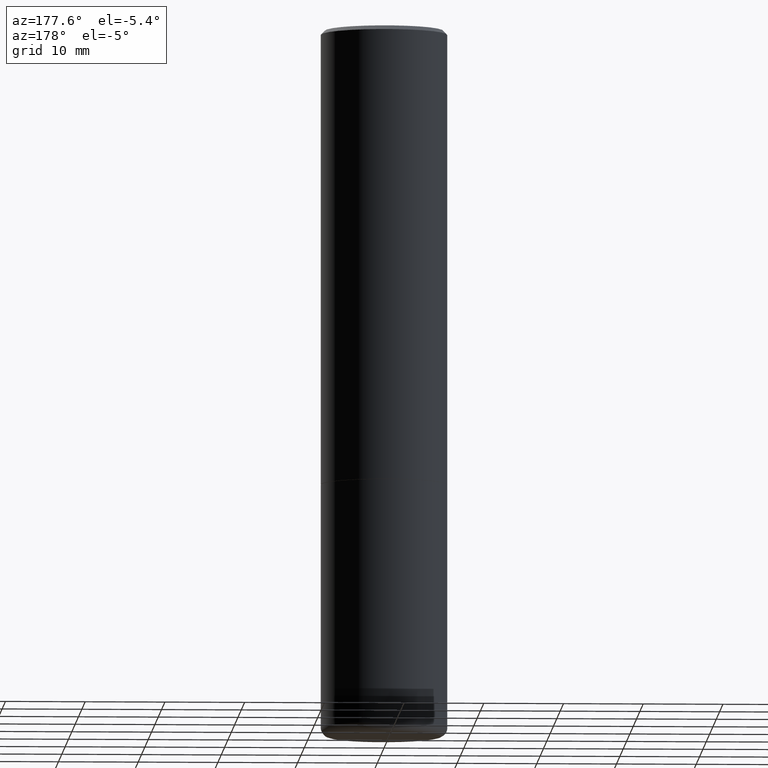
[diagram: clean part render]
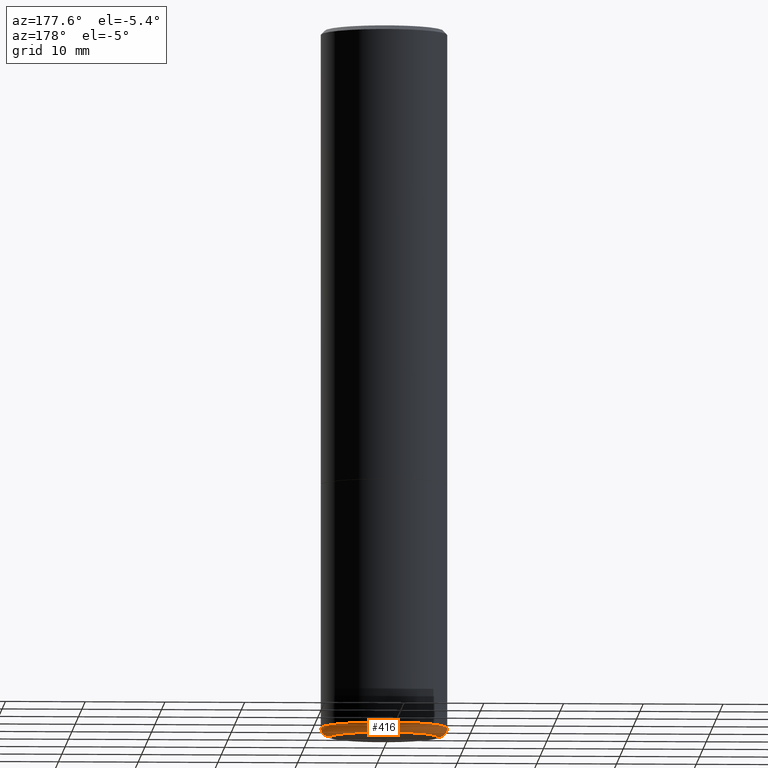
[diagram: same view with one face highlighted and labeled with its STEP entity id]
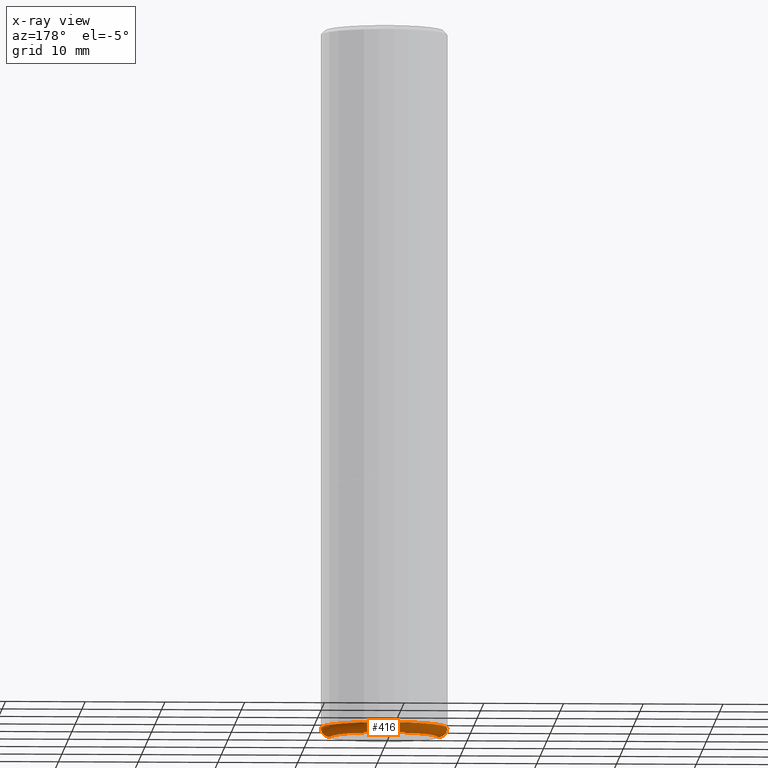
[diagram: x-ray of the same camera — body ghosted, the highlighted face saturated]
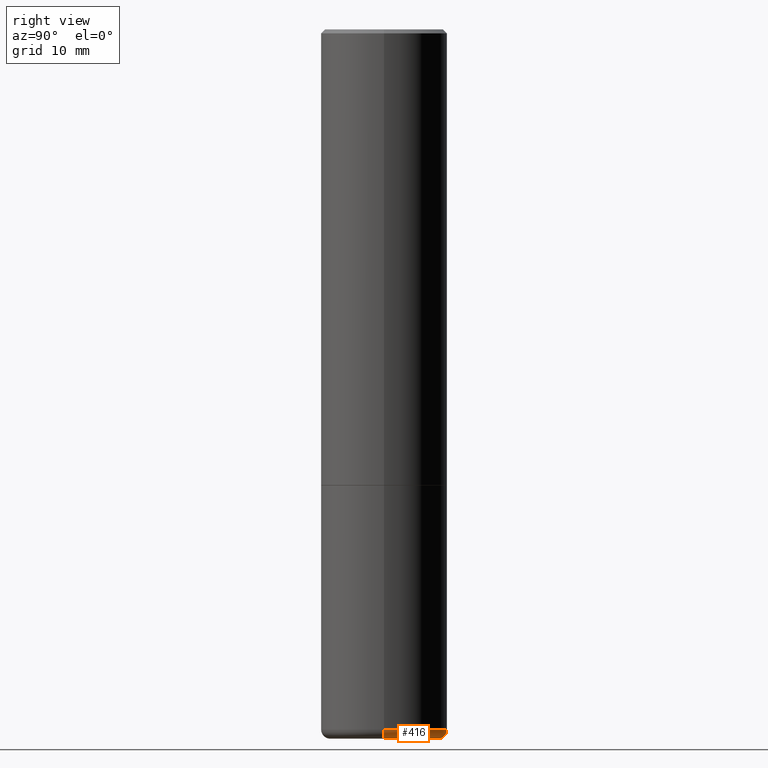
[diagram: same view with one face highlighted and labeled with its STEP entity id]
A machine part, auxiliary view. The second image highlights one B-rep face of the part: STEP entity #416.
The next image is the same camera in x-ray: the body ghosted, the highlighted face saturated — about 0% of this face is hidden behind the body in this view.
A second angle (right view) of the same face is appended — the face is thin or edge-on in the first view.
In plain terms, the highlighted toroidal blend (fillet) surface has major radius 6.7945 mm and minor (blend) radius 1.143 mm.
Its self-contained STEP definition (entity closure, byte-faithful):
#10 = CARTESIAN_POINT ( 'NONE',  ( -0.3125000000000000000, -7.739112131260931893E-15, -3.455061670936044216 ) ) ;
#15 = AXIS2_PLACEMENT_3D ( 'NONE', #248, #353, #317 ) ;
#34 = DIRECTION ( 'NONE',  ( 1.000000000000000000, -6.982962677686269077E-15, 0.000000000000000000 ) ) ;
#35 = CARTESIAN_POINT ( 'NONE',  ( 0.2651448819690678804, -1.407168150092053958E-14, -3.500000000000000000 ) ) ;
#44 = DIRECTION ( 'NONE',  ( -2.445468806185136597E-29, 3.491481338843145583E-15, 1.000000000000000000 ) ) ;
#69 = CARTESIAN_POINT ( 'NONE',  ( -0.2675000000000000155, -1.016258153046714615E-14, -3.455061670936044216 ) ) ;
#75 = EDGE_CURVE ( 'NONE', #375, #102, #87, .T. ) ;
#87 = CIRCLE ( 'NONE', #15, 0.04499999999999999833 ) ;
#88 = CIRCLE ( 'NONE', #296, 0.3125000000000000000 ) ;
#95 = AXIS2_PLACEMENT_3D ( 'NONE', #69, #352, #241 ) ;
#101 = DIRECTION ( 'NONE',  ( -2.445468806185136597E-29, 3.491481338843145583E-15, 1.000000000000000000 ) ) ;
#102 = VERTEX_POINT ( 'NONE', #148 ) ;
#110 = DIRECTION ( 'NONE',  ( -2.445468806185136597E-29, 3.491481338843145583E-15, 1.000000000000000000 ) ) ;
#133 = EDGE_CURVE ( 'NONE', #375, #253, #399, .T. ) ;
#136 = CARTESIAN_POINT ( 'NONE',  ( 8.449245539719989979E-29, -1.206328334862541465E-14, -3.455061670936044216 ) ) ;
#148 = CARTESIAN_POINT ( 'NONE',  ( 0.3125000000000000000, -1.424545918540237458E-14, -3.455061670936044216 ) ) ;
#154 = CARTESIAN_POINT ( 'NONE',  ( -0.2651448819690678804, -1.008952714362760311E-14, -3.500000000000000000 ) ) ;
#169 = ORIENTED_EDGE ( 'NONE', *, *, #133, .T. ) ;
#174 = CIRCLE ( 'NONE', #95, 0.04499999999999999833 ) ;
#194 = AXIS2_PLACEMENT_3D ( 'NONE', #214, #44, #322 ) ;
#214 = CARTESIAN_POINT ( 'NONE',  ( 8.559140821647976968E-29, -1.222018468595100934E-14, -3.500000000000000000 ) ) ;
#241 = DIRECTION ( 'NONE',  ( -1.000000000000000000, 7.105427357600990815E-15, 0.000000000000000000 ) ) ;
#247 = FACE_OUTER_BOUND ( 'NONE', #305, .T. ) ;
#248 = CARTESIAN_POINT ( 'NONE',  ( 0.2675000000000000155, -1.393122586490649131E-14, -3.455061670936044216 ) ) ;
#253 = VERTEX_POINT ( 'NONE', #154 ) ;
#280 = EDGE_CURVE ( 'NONE', #102, #442, #88, .T. ) ;
#289 = AXIS2_PLACEMENT_3D ( 'NONE', #136, #101, #413 ) ;
#296 = AXIS2_PLACEMENT_3D ( 'NONE', #342, #110, #34 ) ;
#305 = EDGE_LOOP ( 'NONE', ( #169, #422, #369, #359 ) ) ;
#317 = DIRECTION ( 'NONE',  ( 1.000000000000000000, -6.982962677686269077E-15, 0.000000000000000000 ) ) ;
#322 = DIRECTION ( 'NONE',  ( 1.000000000000000000, -6.982962677686266711E-15, 0.000000000000000000 ) ) ;
#342 = CARTESIAN_POINT ( 'NONE',  ( 8.449245539719989979E-29, -1.206328334862541465E-14, -3.455061670936044216 ) ) ;
#352 = DIRECTION ( 'NONE',  ( 7.105427357601001859E-15, 1.000000000000000000, -3.491481338843145583E-15 ) ) ;
#353 = DIRECTION ( 'NONE',  ( -6.982962677686266711E-15, -1.000000000000000000, 3.491481338843145583E-15 ) ) ;
#359 = ORIENTED_EDGE ( 'NONE', *, *, #75, .F. ) ;
#369 = ORIENTED_EDGE ( 'NONE', *, *, #280, .F. ) ;
#375 = VERTEX_POINT ( 'NONE', #35 ) ;
#399 = CIRCLE ( 'NONE', #194, 0.2651448819690678804 ) ;
#408 = EDGE_CURVE ( 'NONE', #253, #442, #174, .T. ) ;
#413 = DIRECTION ( 'NONE',  ( 1.000000000000000000, -6.982962677686269077E-15, 4.883557194083114022E-29 ) ) ;
#416 = ADVANCED_FACE ( 'NONE', ( #247 ), #429, .T. ) ;
#422 = ORIENTED_EDGE ( 'NONE', *, *, #408, .T. ) ;
#429 = TOROIDAL_SURFACE ( 'NONE', #289, 0.2675000000000000155, 0.04499999999999999140 ) ;
#442 = VERTEX_POINT ( 'NONE', #10 ) ;